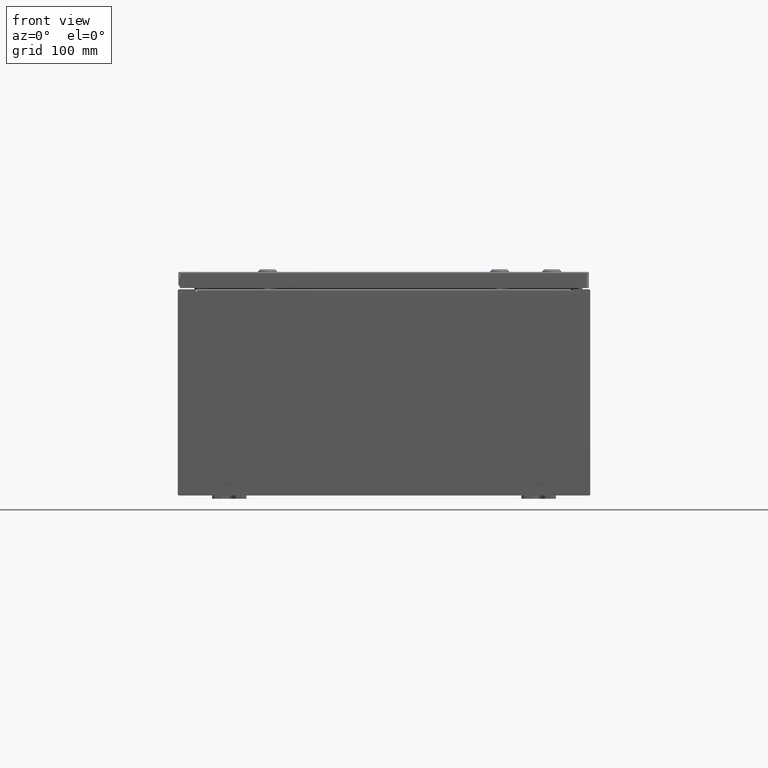
[diagram: clean part render]
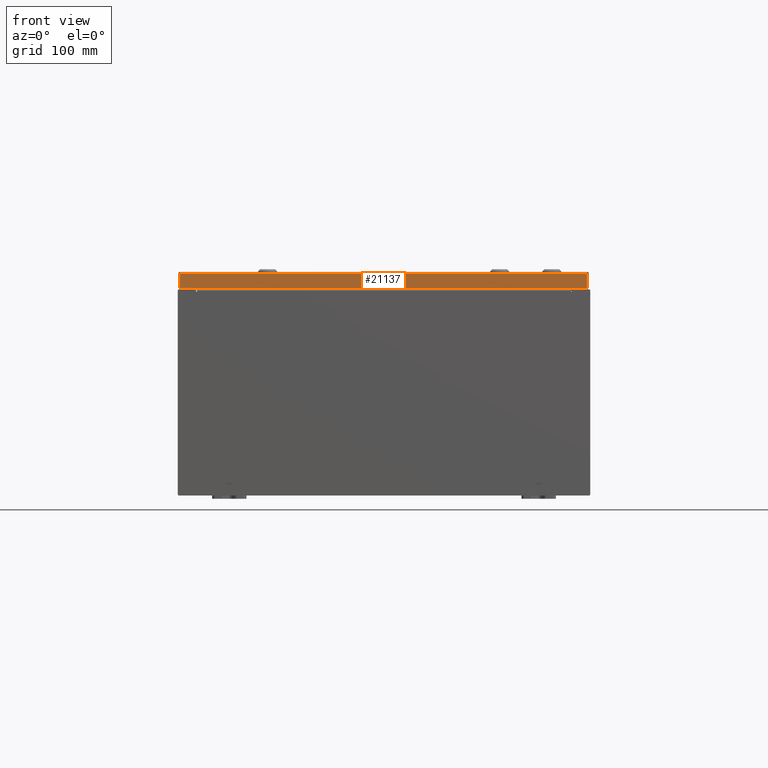
[diagram: same view with one face highlighted and labeled with its STEP entity id]
A machine part, front view. The second image highlights one B-rep face of the part: STEP entity #21137.
In plain terms, the highlighted planar face has unit normal (-0, 1, -0).
Its self-contained STEP definition (entity closure, byte-faithful):
#1110 = CARTESIAN_POINT ( 'NONE',  ( 4.761233444182058100E-030, -14.93749999999999500, 3.808883627975194400E-014 ) ) ;
#1118 = VECTOR ( 'NONE', #56140, 39.37007874015748100 ) ;
#1136 = EDGE_CURVE ( 'NONE', #19736, #53391, #38600, .T. ) ;
#2965 = CARTESIAN_POINT ( 'NONE',  ( 11.93750000000000000, -14.93749999999999800, -0.9376999999999997600 ) ) ;
#4215 = EDGE_CURVE ( 'NONE', #35413, #19736, #39160, .T. ) ;
#6523 = EDGE_CURVE ( 'NONE', #35413, #36473, #46770, .T. ) ;
#6935 = CARTESIAN_POINT ( 'NONE',  ( -11.84865786437626800, -14.93749999999999500, -0.08770000000000008300 ) ) ;
#16152 = PLANE ( 'NONE',  #18680 ) ;
#17050 = CARTESIAN_POINT ( 'NONE',  ( 11.84865786437626800, -14.93749999999999500, -0.08770000000000008300 ) ) ;
#18680 = AXIS2_PLACEMENT_3D ( 'NONE', #1110, #50752, #21149 ) ;
#19736 = VERTEX_POINT ( 'NONE', #17050 ) ;
#21137 = ADVANCED_FACE ( 'NONE', ( #55874 ), #16152, .F. ) ;
#21149 = DIRECTION ( 'NONE',  ( 0.0000000000000000000, 2.532419924601866100E-015, 1.000000000000000000 ) ) ;
#22382 = ORIENTED_EDGE ( 'NONE', *, *, #6523, .T. ) ;
#28478 = CARTESIAN_POINT ( 'NONE',  ( 11.84865786437626900, -14.93749999999999500, -0.07469999999999980800 ) ) ;
#28605 = EDGE_CURVE ( 'NONE', #53391, #36473, #39236, .T. ) ;
#29715 = EDGE_LOOP ( 'NONE', ( #57812, #22382, #47648, #40716 ) ) ;
#35413 = VERTEX_POINT ( 'NONE', #6935 ) ;
#36129 = CARTESIAN_POINT ( 'NONE',  ( 11.93750000000000000, -14.93749999999999500, -0.08770000000000008300 ) ) ;
#36473 = VERTEX_POINT ( 'NONE', #58383 ) ;
#37699 = VECTOR ( 'NONE', #52598, 39.37007874015748100 ) ;
#38600 = LINE ( 'NONE', #28478, #50189 ) ;
#39160 = LINE ( 'NONE', #36129, #1118 ) ;
#39236 = LINE ( 'NONE', #2965, #37699 ) ;
#40716 = ORIENTED_EDGE ( 'NONE', *, *, #1136, .F. ) ;
#45223 = VECTOR ( 'NONE', #54627, 39.37007874015748100 ) ;
#46770 = LINE ( 'NONE', #53365, #45223 ) ;
#47648 = ORIENTED_EDGE ( 'NONE', *, *, #28605, .F. ) ;
#50189 = VECTOR ( 'NONE', #58496, 39.37007874015748100 ) ;
#50752 = DIRECTION ( 'NONE',  ( -3.187436615352006200E-031, 1.000000000000000000, -2.532419924601866100E-015 ) ) ;
#50869 = CARTESIAN_POINT ( 'NONE',  ( 11.84865786437626900, -14.93749999999999800, -0.9376999999999997600 ) ) ;
#52598 = DIRECTION ( 'NONE',  ( -1.000000000000000000, 4.379057701015054300E-047, 1.258652478756310100E-016 ) ) ;
#53365 = CARTESIAN_POINT ( 'NONE',  ( -11.84865786437626900, -14.93749999999999500, 3.808883627975194400E-014 ) ) ;
#53391 = VERTEX_POINT ( 'NONE', #50869 ) ;
#54627 = DIRECTION ( 'NONE',  ( 0.0000000000000000000, -2.532419924601866100E-015, -1.000000000000000000 ) ) ;
#55874 = FACE_OUTER_BOUND ( 'NONE', #29715, .T. ) ;
#56140 = DIRECTION ( 'NONE',  ( 1.000000000000000000, 3.187436615352006600E-031, -7.980458346197363700E-046 ) ) ;
#57812 = ORIENTED_EDGE ( 'NONE', *, *, #4215, .F. ) ;
#58383 = CARTESIAN_POINT ( 'NONE',  ( -11.84865786437626800, -14.93749999999999800, -0.9376999999999967600 ) ) ;
#58496 = DIRECTION ( 'NONE',  ( -0.0000000000000000000, -2.532419924601866100E-015, -1.000000000000000000 ) ) ;